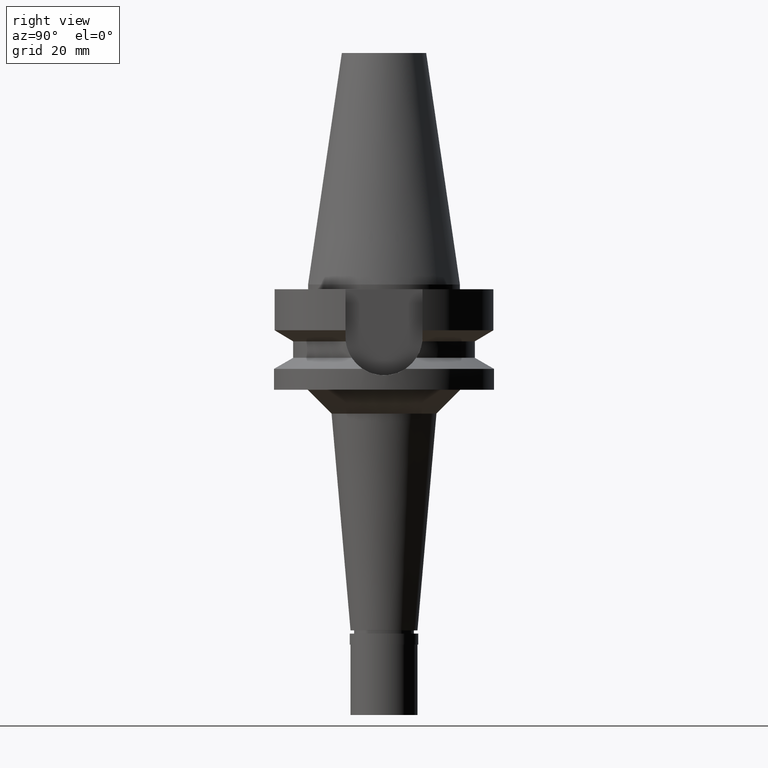
[diagram: clean part render]
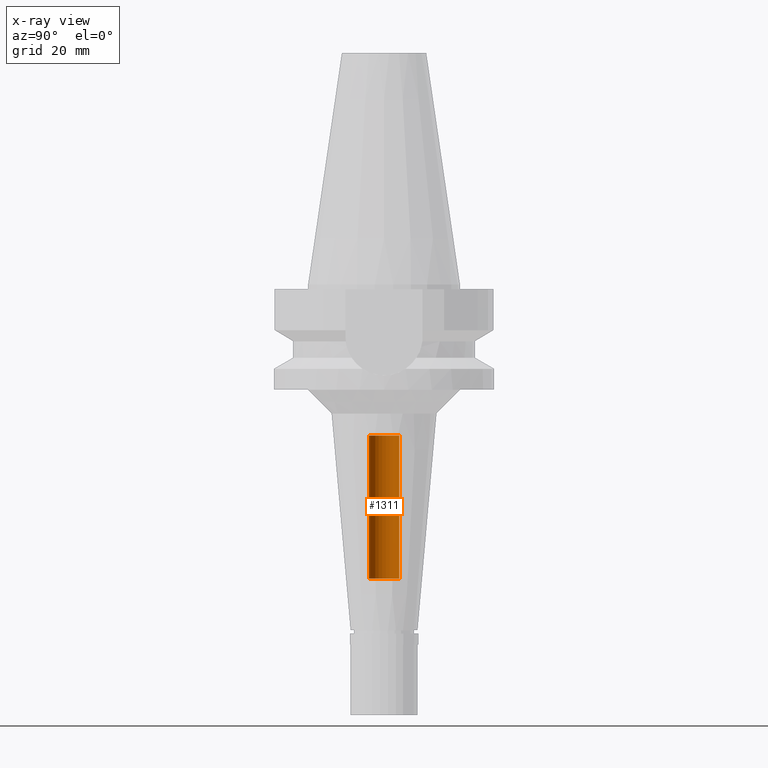
[diagram: x-ray — body ghosted, one internal face saturated and labeled with its STEP entity id]
A machine part, right view, then the same camera in x-ray: the body is ghosted and one INTERNAL B-rep face — a face not visible from any outside direction — is saturated and labeled: STEP entity #1311.
In plain terms, the highlighted cylindrical surface (edge-blend (fillet) strip) has radius 3.2 mm, axis along (0, 0, -1).
Its self-contained STEP definition (entity closure, byte-faithful):
#21 = CYLINDRICAL_SURFACE ( 'NONE', #1570, 3.200000000000000178 ) ;
#92 = DIRECTION ( 'NONE',  ( 0.0000000000000000000, 0.0000000000000000000, 1.000000000000000000 ) ) ;
#267 = LINE ( 'NONE', #1297, #2142 ) ;
#286 = VERTEX_POINT ( 'NONE', #2205 ) ;
#315 = CIRCLE ( 'NONE', #2543, 3.200000000000000178 ) ;
#526 = EDGE_CURVE ( 'NONE', #286, #1781, #267, .T. ) ;
#706 = CARTESIAN_POINT ( 'NONE',  ( 0.0000000000000000000, 1.899672114836999856E-14, 55.12000000000000455 ) ) ;
#874 = DIRECTION ( 'NONE',  ( 0.0000000000000000000, 0.0000000000000000000, -1.000000000000000000 ) ) ;
#960 = CARTESIAN_POINT ( 'NONE',  ( 0.0000000000000000000, -3.200000000000000178, -61.50000000000000000 ) ) ;
#1016 = AXIS2_PLACEMENT_3D ( 'NONE', #2176, #2662, #1038 ) ;
#1038 = DIRECTION ( 'NONE',  ( 0.0000000000000000000, 1.000000000000000000, 0.0000000000000000000 ) ) ;
#1043 = CARTESIAN_POINT ( 'NONE',  ( 0.0000000000000000000, -3.200000000000000178, -31.60000000000000142 ) ) ;
#1069 = CARTESIAN_POINT ( 'NONE',  ( 0.0000000000000000000, 3.200000000000000178, -31.60000000000000142 ) ) ;
#1177 = ORIENTED_EDGE ( 'NONE', *, *, #526, .T. ) ;
#1232 = CARTESIAN_POINT ( 'NONE',  ( 0.0000000000000000000, -3.200000000000000178, -61.50000000000000000 ) ) ;
#1297 = CARTESIAN_POINT ( 'NONE',  ( 0.0000000000000000000, 3.200000000000000178, -61.50000000000000000 ) ) ;
#1311 = ADVANCED_FACE ( 'NONE', ( #2737 ), #21, .F. ) ;
#1333 = DIRECTION ( 'NONE',  ( 0.0000000000000000000, -1.000000000000000000, 0.0000000000000000000 ) ) ;
#1364 = EDGE_LOOP ( 'NONE', ( #2672, #1420, #2614, #1177 ) ) ;
#1420 = ORIENTED_EDGE ( 'NONE', *, *, #1478, .F. ) ;
#1478 = EDGE_CURVE ( 'NONE', #1675, #2883, #1652, .T. ) ;
#1570 = AXIS2_PLACEMENT_3D ( 'NONE', #706, #2036, #1333 ) ;
#1573 = CIRCLE ( 'NONE', #1016, 3.200000000000000178 ) ;
#1652 = LINE ( 'NONE', #1232, #2347 ) ;
#1675 = VERTEX_POINT ( 'NONE', #960 ) ;
#1779 = EDGE_CURVE ( 'NONE', #1781, #2883, #1573, .T. ) ;
#1781 = VERTEX_POINT ( 'NONE', #1069 ) ;
#2010 = CARTESIAN_POINT ( 'NONE',  ( 0.0000000000000000000, 1.899672114836999856E-14, -61.50000000000000000 ) ) ;
#2036 = DIRECTION ( 'NONE',  ( 0.0000000000000000000, 0.0000000000000000000, -1.000000000000000000 ) ) ;
#2142 = VECTOR ( 'NONE', #92, 1000.000000000000000 ) ;
#2176 = CARTESIAN_POINT ( 'NONE',  ( 0.0000000000000000000, 1.899672114836999856E-14, -31.60000000000000142 ) ) ;
#2205 = CARTESIAN_POINT ( 'NONE',  ( 0.0000000000000000000, 3.200000000000000178, -61.50000000000000000 ) ) ;
#2347 = VECTOR ( 'NONE', #2752, 1000.000000000000000 ) ;
#2430 = EDGE_CURVE ( 'NONE', #1675, #286, #315, .T. ) ;
#2524 = DIRECTION ( 'NONE',  ( 0.0000000000000000000, -1.000000000000000000, 0.0000000000000000000 ) ) ;
#2543 = AXIS2_PLACEMENT_3D ( 'NONE', #2010, #874, #2524 ) ;
#2614 = ORIENTED_EDGE ( 'NONE', *, *, #2430, .T. ) ;
#2662 = DIRECTION ( 'NONE',  ( 0.0000000000000000000, 0.0000000000000000000, 1.000000000000000000 ) ) ;
#2672 = ORIENTED_EDGE ( 'NONE', *, *, #1779, .T. ) ;
#2737 = FACE_OUTER_BOUND ( 'NONE', #1364, .T. ) ;
#2752 = DIRECTION ( 'NONE',  ( 0.0000000000000000000, 0.0000000000000000000, 1.000000000000000000 ) ) ;
#2883 = VERTEX_POINT ( 'NONE', #1043 ) ;